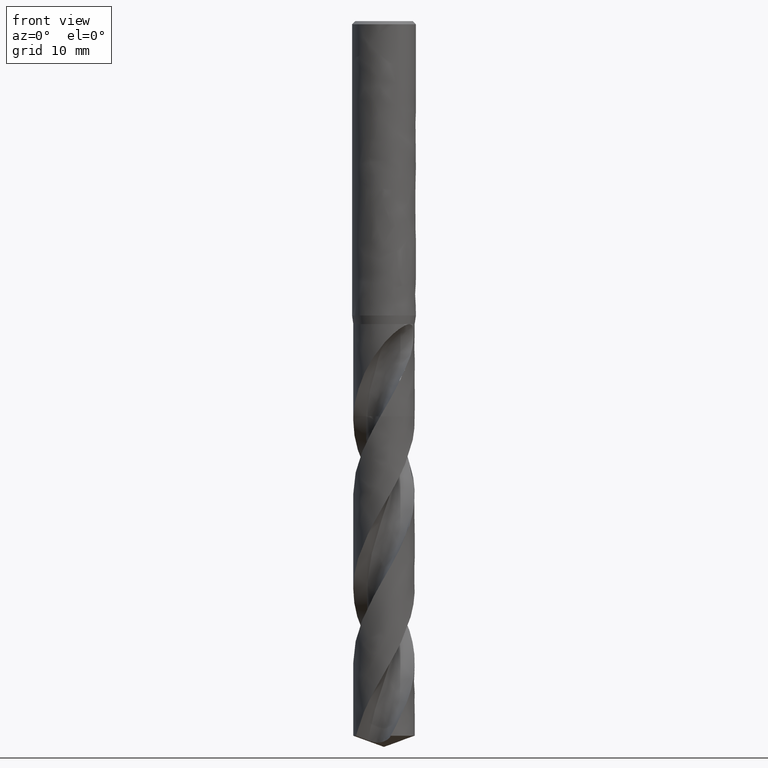
[diagram: clean part render]
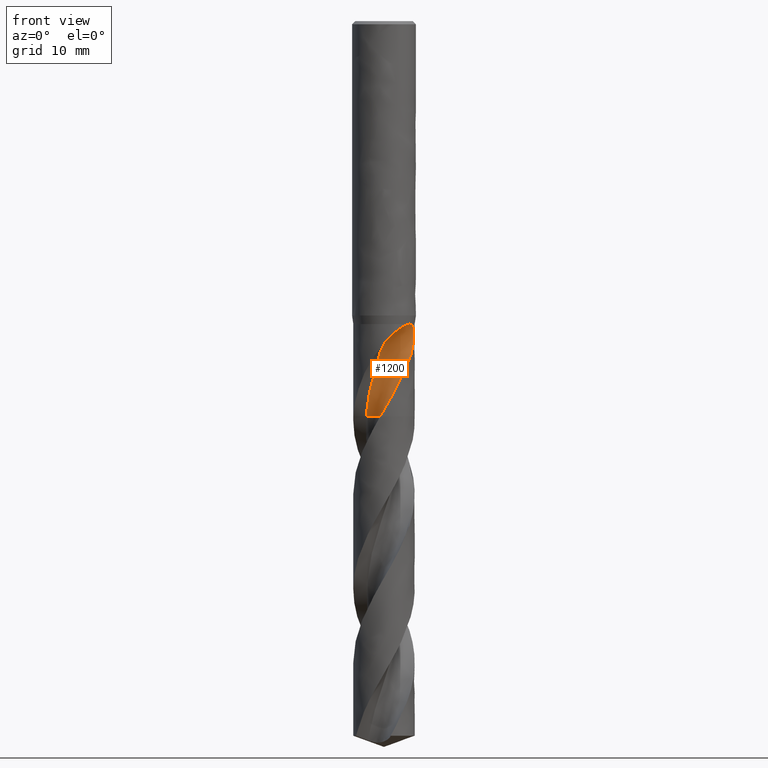
[diagram: same view with one face highlighted and labeled with its STEP entity id]
A machine part, front view. The second image highlights one B-rep face of the part: STEP entity #1200.
In plain terms, the highlighted face is a freeform B-spline surface patch.
Its self-contained STEP definition (entity closure, byte-faithful):
#72 = EDGE_CURVE('', #73, #75, #77, .T.);
#73 = VERTEX_POINT('', #74);
#74 = CARTESIAN_POINT('', (3.20133030510488, -2.14366094457479, -37.98));
#75 = VERTEX_POINT('', #76);
#76 = CARTESIAN_POINT('', (3.31943147922853, -1.95035244371541, -38.));
#77 = B_SPLINE_CURVE_WITH_KNOTS('', 3, (#78, #79, #80, #81, #82, #83, #84, #85, #86, #87), .UNSPECIFIED., .F., .U., (4, 3, 3, 4), (0., 0.131371551464803, 0.218819326132517, 0.227701219259508), .UNSPECIFIED.);
#78 = CARTESIAN_POINT('', (3.20133030510561, -2.14366094457371, -37.98));
#79 = CARTESIAN_POINT('', (3.22568942436468, -2.10727083285238, -37.9800497044159));
#80 = CARTESIAN_POINT('', (3.24923442093067, -2.07024870750386, -37.9821046946361));
#81 = CARTESIAN_POINT('', (3.27171381009526, -2.03292425608257, -37.9864832539406));
#82 = CARTESIAN_POINT('', (3.28667726707216, -2.00807914935214, -37.9893978519884));
#83 = CARTESIAN_POINT('', (3.30119565578071, -1.98305658088408, -37.993347348692));
#84 = CARTESIAN_POINT('', (3.31518494596397, -1.957991631135, -37.998419558188));
#85 = CARTESIAN_POINT('', (3.31660580979729, -1.95544583502126, -37.99893473222));
#86 = CARTESIAN_POINT('', (3.31802135133284, -1.95289938555896, -37.9994615181226));
#87 = CARTESIAN_POINT('', (3.31943147922852, -1.95035244371543, -38.));
#162 = VERTEX_POINT('', #163);
#163 = CARTESIAN_POINT('', (3.05170390260103, -2.34725441545003, -38.));
#170 = EDGE_CURVE('', #171, #162, #173, .T.);
#171 = VERTEX_POINT('', #172);
#172 = CARTESIAN_POINT('', (3.19951254609133, -2.14637308851057, -37.98));
#173 = B_SPLINE_CURVE_WITH_KNOTS('', 3, (#174, #175, #176, #177, #178, #179, #180, #181, #182, #183), .UNSPECIFIED., .F., .U., (4, 3, 3, 4), (0., 0.131654081633134, 0.219233245114541, 0.250449611742274), .UNSPECIFIED.);
#174 = CARTESIAN_POINT('', (3.19951254608842, -2.14637308851491, -37.98));
#175 = CARTESIAN_POINT('', (3.17505871378327, -2.18281309355881, -37.9800497466822));
#176 = CARTESIAN_POINT('', (3.14972671582542, -2.21871388005412, -37.9821026221019));
#177 = CARTESIAN_POINT('', (3.12372378910746, -2.25386517690207, -37.9858576838521));
#178 = CARTESIAN_POINT('', (3.10642607572268, -2.27724858541507, -37.9883556327407));
#179 = CARTESIAN_POINT('', (3.08881067511867, -2.30032997303066, -37.9916097650414));
#180 = CARTESIAN_POINT('', (3.07092863860264, -2.32306790995569, -37.9955408495115));
#181 = CARTESIAN_POINT('', (3.06455483705277, -2.33117252921893, -37.9969420295318));
#182 = CARTESIAN_POINT('', (3.05814589258237, -2.3392351962433, -37.9984295244529));
#183 = CARTESIAN_POINT('', (3.05170390260106, -2.34725441545002, -38.));
#185 = EDGE_CURVE('', #73, #171, #186, .T.);
#186 = LINE('', #187, #188);
#187 = CARTESIAN_POINT('', (3.20133030510488, -2.14366094457479, -37.98));
#188 = VECTOR('', #189, 0.00326496134123482);
#189 = DIRECTION('', (-0.00181775901355685, -0.00271214393578045, 0.));
#1145 = VERTEX_POINT('', #1146);
#1146 = CARTESIAN_POINT('', (2.59202014465686, -2.8467405167477, -43.7400773660523));
#1147 = VERTEX_POINT('', #1148);
#1148 = CARTESIAN_POINT('', (1.75145121548249, -3.42854468248336, -45.5343572750327));
#1179 = EDGE_CURVE('', #1147, #1145, #1180, .T.);
#1180 = B_SPLINE_CURVE_WITH_KNOTS('', 3, (#1181, #1182, #1183, #1184, #1185, #1186), .UNSPECIFIED., .F., .U., (4, 1, 1, 4), (45.5156427249674, 45.994, 46.7016, 47.3099226339477), .UNSPECIFIED.);
#1181 = CARTESIAN_POINT('', (1.75145121548253, -3.42854468248334, -45.5343572750326));
#1182 = CARTESIAN_POINT('', (1.82675896631787, -3.37552195424532, -45.3749048500217));
#1183 = CARTESIAN_POINT('', (2.0058530001326, -3.23416048038326, -44.9795857583442));
#1184 = CARTESIAN_POINT('', (2.24731809579754, -2.99782794068557, -44.3814924553508));
#1185 = CARTESIAN_POINT('', (2.47480460346424, -2.88978234782683, -43.9428515773682));
#1186 = CARTESIAN_POINT('', (2.59202014465686, -2.8467405167477, -43.7400773660523));
#1200 = ADVANCED_FACE('', (#1201), #1513, .T.);
#1201 = FACE_OUTER_BOUND('', #1202, .T.);
#1202 = EDGE_LOOP('', (#1203, #1286, #1332, #1333, #1436, #1437, #1438, #1439, #1493));
#1203 = ORIENTED_EDGE('', *, *, #1204, .T.);
#1204 = EDGE_CURVE('', #1205, #1207, #1209, .T.);
#1205 = VERTEX_POINT('', #1206);
#1206 = CARTESIAN_POINT('', (-2.24983323965265, -0.501191650524549, -49.55));
#1207 = VERTEX_POINT('', #1208);
#1208 = CARTESIAN_POINT('', (-0.466234069556905, -3.82166531663676, -49.55));
#1209 = B_SPLINE_CURVE_WITH_KNOTS('', 3, (#1210, #1211, #1212, #1213, #1214, #1215, #1216, #1217, #1218, #1219, #1220, #1221, #1222, #1223, #1224, #1225, #1226, #1227, #1228, #1229, #1230, #1231, #1232, #1233, #1234, #1235, #1236, #1237, #1238, #1239, #1240, #1241, #1242, #1243, #1244, #1245, #1246, #1247, #1248, #1249, #1250, #1251, #1252, #1253, #1254, #1255, #1256, #1257, #1258, #1259, #1260, #1261, #1262, #1263, #1264, #1265, #1266, #1267, #1268, #1269, #1270, #1271, #1272, #1273, #1274, #1275, #1276, #1277, #1278, #1279, #1280, #1281, #1282, #1283, #1284, #1285), .UNSPECIFIED., .F., .U., (4, 3, 3, 3, 3, 3, 3, 3, 3, 3, 3, 3, 3, 3, 3, 3, 3, 3, 3, 3, 3, 3, 3, 3, 3, 4), (0., 0.198088901692682, 0.395985560654532, 0.593694146046952, 0.791218018763926, 0.98855978655312, 1.18572134605706, 1.38270391323414, 1.57950804319666, 1.77613364014213, 1.97257995773266, 2.1688455899766, 2.20773125110463, 2.23367780451171, 2.43175021814858, 2.62963077565861, 2.82732357515355, 3.02483191170542, 3.22215833128962, 3.41930467179037, 3.6162720924893, 3.81306109304162, 4.00967152258799, 4.20610257933023, 4.40235280060064, 4.40692685715543), .UNSPECIFIED.);
#1210 = CARTESIAN_POINT('', (-2.24983323965265, -0.501191650524546, -49.55));
#1211 = CARTESIAN_POINT('', (-2.18430847634853, -0.509341371169211, -49.55));
#1212 = CARTESIAN_POINT('', (-2.11907363092086, -0.520313098798377, -49.55));
#1213 = CARTESIAN_POINT('', (-2.05448796143209, -0.534046410465008, -49.55));
#1214 = CARTESIAN_POINT('', (-1.98996497150471, -0.547766394129336, -49.55));
#1215 = CARTESIAN_POINT('', (-1.92597162268462, -0.564267743701342, -49.55));
#1216 = CARTESIAN_POINT('', (-1.86285965315768, -0.58345975983695, -49.55));
#1217 = CARTESIAN_POINT('', (-1.79980766288176, -0.602633536599554, -49.55));
#1218 = CARTESIAN_POINT('', (-1.73752001809649, -0.624527938019704, -49.55));
#1219 = CARTESIAN_POINT('', (-1.67633843208241, -0.649022850264866, -49.55));
#1220 = CARTESIAN_POINT('', (-1.61521400602634, -0.673494877713362, -49.55));
#1221 = CARTESIAN_POINT('', (-1.55508194897609, -0.700607238986529, -49.55));
#1222 = CARTESIAN_POINT('', (-1.49627153326969, -0.730211471666402, -49.55));
#1223 = CARTESIAN_POINT('', (-1.43751533716904, -0.759788411054685, -49.55));
#1224 = CARTESIAN_POINT('', (-1.37997124469594, -0.791906532054699, -49.55));
#1225 = CARTESIAN_POINT('', (-1.32395377701272, -0.826390285303954, -49.55));
#1226 = CARTESIAN_POINT('', (-1.26798746328392, -0.860842548726641, -49.55));
#1227 = CARTESIAN_POINT('', (-1.21344315658319, -0.897718800897812, -49.55));
#1228 = CARTESIAN_POINT('', (-1.16061843852553, -0.936817853181276, -49.55));
#1229 = CARTESIAN_POINT('', (-1.10784167717517, -0.97588140954777, -49.55));
#1230 = CARTESIAN_POINT('', (-1.05668552956693, -1.01723466832961, -49.55));
#1231 = CARTESIAN_POINT('', (-1.00742858643886, -1.06065242424017, -49.55));
#1232 = CARTESIAN_POINT('', (-0.958216262851785, -1.10403085005397, -49.55));
#1233 = CARTESIAN_POINT('', (-0.910810484988028, -1.14954866510322, -49.55));
#1234 = CARTESIAN_POINT('', (-0.865468952610682, -1.19695843266853, -49.55));
#1235 = CARTESIAN_POINT('', (-0.820168552299895, -1.24432519194513, -49.55));
#1236 = CARTESIAN_POINT('', (-0.776846674212669, -1.29366617862071, -49.55));
#1237 = CARTESIAN_POINT('', (-0.735738391365588, -1.34471365881365, -49.55));
#1238 = CARTESIAN_POINT('', (-0.694667590242893, -1.39571459491741, -49.55));
#1239 = CARTESIAN_POINT('', (-0.655732158052379, -1.44851102901015, -49.55));
#1240 = CARTESIAN_POINT('', (-0.619142981524816, -1.50281699874972, -49.55));
#1241 = CARTESIAN_POINT('', (-0.582587458608697, -1.55707301951043, -49.55));
#1242 = CARTESIAN_POINT('', (-0.548307962009516, -1.61293361585318, -49.55));
#1243 = CARTESIAN_POINT('', (-0.516489819498009, -1.670096784516, -49.55));
#1244 = CARTESIAN_POINT('', (-0.510185763646356, -1.68142239246994, -49.55));
#1245 = CARTESIAN_POINT('', (-0.503976813203508, -1.69280146335573, -49.55));
#1246 = CARTESIAN_POINT('', (-0.497864287576947, -1.70423157911069, -49.55));
#1247 = CARTESIAN_POINT('', (-0.493785689759117, -1.71185835207229, -49.55));
#1248 = CARTESIAN_POINT('', (-0.489749860379127, -1.71950815113113, -49.55));
#1249 = CARTESIAN_POINT('', (-0.48575718128164, -1.72718025251157, -49.55));
#1250 = CARTESIAN_POINT('', (-0.455277619186843, -1.78574801734146, -49.55));
#1251 = CARTESIAN_POINT('', (-0.427285574106421, -1.845678628553, -49.55));
#1252 = CARTESIAN_POINT('', (-0.401935176798117, -1.90664209416127, -49.55));
#1253 = CARTESIAN_POINT('', (-0.376609334292534, -1.96754650957585, -49.55));
#1254 = CARTESIAN_POINT('', (-0.353873599529919, -2.02959339768309, -49.55));
#1255 = CARTESIAN_POINT('', (-0.333852918723664, -2.09244177439771, -49.55));
#1256 = CARTESIAN_POINT('', (-0.313851234444083, -2.15523051773242, -49.55));
#1257 = CARTESIAN_POINT('', (-0.296522856751163, -2.21893408288718, -49.55));
#1258 = CARTESIAN_POINT('', (-0.281962834872927, -2.28320304449756, -49.55));
#1259 = CARTESIAN_POINT('', (-0.267416398641177, -2.34741203810791, -49.55));
#1260 = CARTESIAN_POINT('', (-0.255606585737227, -2.41230260615898, -49.55));
#1261 = CARTESIAN_POINT('', (-0.24659805441557, -2.47751947537949, -49.55));
#1262 = CARTESIAN_POINT('', (-0.237597820489, -2.54267627597051, -49.55));
#1263 = CARTESIAN_POINT('', (-0.231377298266493, -2.60827752144057, -49.55));
#1264 = CARTESIAN_POINT('', (-0.227970482236331, -2.67396470800331, -49.55));
#1265 = CARTESIAN_POINT('', (-0.224566775249091, -2.73959194877483, -49.55));
#1266 = CARTESIAN_POINT('', (-0.223965440121689, -2.80542435813636, -49.55));
#1267 = CARTESIAN_POINT('', (-0.226169757099158, -2.87110282446438, -49.55));
#1268 = CARTESIAN_POINT('', (-0.228372073552775, -2.93672168442005, -49.55));
#1269 = CARTESIAN_POINT('', (-0.233378941684453, -3.0023060338971, -49.55));
#1270 = CARTESIAN_POINT('', (-0.241163098829903, -3.06749876261111, -49.55));
#1271 = CARTESIAN_POINT('', (-0.24894020480692, -3.13263243741572, -49.55));
#1272 = CARTESIAN_POINT('', (-0.259503657784587, -3.1974932596684, -49.55));
#1273 = CARTESIAN_POINT('', (-0.272796043213533, -3.26172869739976, -49.55));
#1274 = CARTESIAN_POINT('', (-0.286076366816711, -3.32590584637158, -49.55));
#1275 = CARTESIAN_POINT('', (-0.302104691171292, -3.38957486071454, -49.55));
#1276 = CARTESIAN_POINT('', (-0.320794056841422, -3.45239031308101, -49.55));
#1277 = CARTESIAN_POINT('', (-0.339466371717577, -3.51514845727792, -49.55));
#1278 = CARTESIAN_POINT('', (-0.360828587575885, -3.5771679385478, -49.55));
#1279 = CARTESIAN_POINT('', (-0.384765017787317, -3.63811289169905, -49.55));
#1280 = CARTESIAN_POINT('', (-0.408679411994243, -3.69900173860345, -49.55));
#1281 = CARTESIAN_POINT('', (-0.435206384070916, -3.75892780042542, -49.55));
#1282 = CARTESIAN_POINT('', (-0.46420254178254, -3.81756714528528, -49.55));
#1283 = CARTESIAN_POINT('', (-0.464878363009064, -3.81893386822698, -49.55));
#1284 = CARTESIAN_POINT('', (-0.465555539650846, -3.82029992665659, -49.55));
#1285 = CARTESIAN_POINT('', (-0.466234069693427, -3.82166531656892, -49.55));
#1286 = ORIENTED_EDGE('', *, *, #1287, .F.);
#1287 = EDGE_CURVE('', #1147, #1207, #1288, .T.);
#1288 = B_SPLINE_CURVE_WITH_KNOTS('', 3, (#1289, #1290, #1291, #1292, #1293, #1294, #1295, #1296, #1297, #1298, #1299, #1300, #1301, #1302, #1303, #1304, #1305, #1306, #1307, #1308, #1309, #1310, #1311, #1312, #1313, #1314, #1315, #1316, #1317, #1318, #1319, #1320, #1321, #1322, #1323, #1324, #1325, #1326, #1327, #1328, #1329, #1330, #1331), .UNSPECIFIED., .F., .U., (4, 3, 3, 3, 3, 3, 3, 3, 3, 3, 3, 3, 3, 3, 4), (0., 0.295463922500052, 0.738503562352333, 1.18150886169484, 1.62444973831842, 1.91981590858101, 2.21517813684661, 2.51054195681651, 2.70749055912464, 3.15027779174519, 3.5930237112398, 3.68057742389274, 3.76817690366044, 4.43461656332778, 4.62056826105619), .UNSPECIFIED.);
#1289 = CARTESIAN_POINT('', (1.7514512154825, -3.42854468248336, -45.5343572750327));
#1290 = CARTESIAN_POINT('', (1.70964129805426, -3.44990302471907, -45.6209345992986));
#1291 = CARTESIAN_POINT('', (1.66728820774564, -3.47057467843666, -45.7074236928924));
#1292 = CARTESIAN_POINT('', (1.6243922350689, -3.49053718883612, -45.7938025951899));
#1293 = CARTESIAN_POINT('', (1.56007095981807, -3.52047039808578, -45.9233252707197));
#1294 = CARTESIAN_POINT('', (1.49452412204234, -3.54880906243078, -46.0526240545101));
#1295 = CARTESIAN_POINT('', (1.42789097031278, -3.57541988819484, -46.1817024569832));
#1296 = CARTESIAN_POINT('', (1.36126298339511, -3.60202865132333, -46.3107708544415));
#1297 = CARTESIAN_POINT('', (1.29353651822991, -3.6269147384794, -46.4396440346203));
#1298 = CARTESIAN_POINT('', (1.22486240186975, -3.64996056094968, -46.5683247322685));
#1299 = CARTESIAN_POINT('', (1.1561982722373, -3.67300303205026, -46.6969867169116));
#1300 = CARTESIAN_POINT('', (1.08657328001353, -3.69421063303849, -46.8254817093968));
#1301 = CARTESIAN_POINT('', (1.01613072261203, -3.71348601109061, -46.9538013508107));
#1302 = CARTESIAN_POINT('', (0.969157527088098, -3.72633940732492, -47.0393687099192));
#1303 = CARTESIAN_POINT('', (0.921815187143791, -3.7383355598437, -47.1248673975828));
#1304 = CARTESIAN_POINT('', (0.874144662785156, -3.74944944072117, -47.2102926081269));
#1305 = CARTESIAN_POINT('', (0.82647477464381, -3.76056317327127, -47.2957166785745));
#1306 = CARTESIAN_POINT('', (0.778471698814351, -3.77079541222262, -47.381074738728));
#1307 = CARTESIAN_POINT('', (0.7302087878685, -3.78011840107154, -47.4663799460978));
#1308 = CARTESIAN_POINT('', (0.68194561683427, -3.78944144016195, -47.5516856131765));
#1309 = CARTESIAN_POINT('', (0.633418127891448, -3.79785574539249, -47.6369462852028));
#1310 = CARTESIAN_POINT('', (0.584727167528973, -3.8053375854914, -47.7221901824602));
#1311 = CARTESIAN_POINT('', (0.552260033980231, -3.81032647665052, -47.7790308152156));
#1312 = CARTESIAN_POINT('', (0.51971916650108, -3.8149011237028, -47.8358672432422));
#1313 = CARTESIAN_POINT('', (0.487141145277524, -3.81905662495042, -47.8927114660836));
#1314 = CARTESIAN_POINT('', (0.413898016396293, -3.82839917867267, -48.0205107793431));
#1315 = CARTESIAN_POINT('', (0.340455625585955, -3.83562578535716, -48.1483681136751));
#1316 = CARTESIAN_POINT('', (0.266909208880179, -3.84073684001064, -48.2762325161413));
#1317 = CARTESIAN_POINT('', (0.193369654233992, -3.84584741779028, -48.4040849885478));
#1318 = CARTESIAN_POINT('', (0.119708567586548, -3.84884443112236, -48.5319695555935));
#1319 = CARTESIAN_POINT('', (0.0460008988748133, -3.84972517425628, -48.6598243273772));
#1320 = CARTESIAN_POINT('', (0.0314250896746483, -3.84989934261757, -48.6851078126837));
#1321 = CARTESIAN_POINT('', (0.016847445790431, -3.84999073905987, -48.7103909460857));
#1322 = CARTESIAN_POINT('', (0.00226913304161166, -3.84999933130322, -48.7356735864002));
#1323 = CARTESIAN_POINT('', (-0.0123168002556959, -3.85000792803801, -48.7609694427562));
#1324 = CARTESIAN_POINT('', (-0.0269035205776726, -3.84993363401311, -48.7862650093307));
#1325 = CARTESIAN_POINT('', (-0.0414898502413459, -3.8497764340708, -48.8115601501281));
#1326 = CARTESIAN_POINT('', (-0.152459785252747, -3.84858048774411, -49.0040006197403));
#1327 = CARTESIAN_POINT('', (-0.26343649862849, -3.84257958854429, -49.1964670716406));
#1328 = CARTESIAN_POINT('', (-0.373892465710648, -3.83180172035099, -49.3889051344082));
#1329 = CARTESIAN_POINT('', (-0.404712172048974, -3.82879445201189, -49.4425996946886));
#1330 = CARTESIAN_POINT('', (-0.435498848531159, -3.82541494042386, -49.4963037219605));
#1331 = CARTESIAN_POINT('', (-0.466234069556905, -3.82166531663676, -49.55));
#1332 = ORIENTED_EDGE('', *, *, #1179, .T.);
#1333 = ORIENTED_EDGE('', *, *, #1334, .T.);
#1334 = EDGE_CURVE('', #1145, #75, #1335, .T.);
#1335 = B_SPLINE_CURVE_WITH_KNOTS('', 3, (#1336, #1337, #1338, #1339, #1340, #1341, #1342, #1343, #1344, #1345, #1346, #1347, #1348, #1349, #1350, #1351, #1352, #1353, #1354, #1355, #1356, #1357, #1358, #1359, #1360, #1361, #1362, #1363, #1364, #1365, #1366, #1367, #1368, #1369, #1370, #1371, #1372, #1373, #1374, #1375, #1376, #1377, #1378, #1379, #1380, #1381, #1382, #1383, #1384, #1385, #1386, #1387, #1388, #1389, #1390, #1391, #1392, #1393, #1394, #1395, #1396, #1397, #1398, #1399, #1400, #1401, #1402, #1403, #1404, #1405, #1406, #1407, #1408, #1409, #1410, #1411, #1412, #1413, #1414, #1415, #1416, #1417, #1418, #1419, #1420, #1421, #1422, #1423, #1424, #1425, #1426, #1427, #1428, #1429, #1430, #1431, #1432, #1433, #1434, #1435), .UNSPECIFIED., .F., .U., (4, 3, 3, 3, 3, 3, 3, 3, 3, 3, 3, 3, 3, 3, 3, 3, 3, 3, 3, 3, 3, 3, 3, 3, 3, 3, 3, 3, 3, 3, 3, 3, 3, 4), (0., 0.19704578747574, 0.492569967065367, 0.787954709282465, 1.08317278316681, 1.37821273601244, 1.67307678508571, 1.96776707153262, 2.26227645542168, 2.55661790373623, 2.85081172359323, 3.1448800843557, 3.43886825887718, 3.73282833144518, 4.02683283339566, 4.32099592498144, 4.51752517700619, 4.71419178661894, 4.91105598189497, 5.04243701251078, 5.23982383691136, 5.29826112779932, 5.3372136411197, 5.46907686079793, 5.60116262203627, 5.73350332939159, 5.8661172890446, 5.99899236577946, 6.13206893567395, 6.26523512122094, 6.39834743607101, 6.53127186872596, 6.66391969303472, 6.7933299219264), .UNSPECIFIED.);
#1336 = CARTESIAN_POINT('', (2.59202014465686, -2.8467405167477, -43.7400773660523));
#1337 = CARTESIAN_POINT('', (2.61862665339964, -2.82251470261588, -43.6851290317722));
#1338 = CARTESIAN_POINT('', (2.64508477282443, -2.79774096171256, -43.6303474708659));
#1339 = CARTESIAN_POINT('', (2.67132659047921, -2.77245635619402, -43.575701596841));
#1340 = CARTESIAN_POINT('', (2.71068339040231, -2.73453515829461, -43.4937451272508));
#1341 = CARTESIAN_POINT('', (2.74955883837683, -2.69545742119802, -43.4120834808595));
#1342 = CARTESIAN_POINT('', (2.78773970163064, -2.65537329879478, -43.3306014419161));
#1343 = CARTESIAN_POINT('', (2.82590254998205, -2.61530808930999, -43.249157848698));
#1344 = CARTESIAN_POINT('', (2.86337717477911, -2.57423120542, -43.1678806288207));
#1345 = CARTESIAN_POINT('', (2.89997027685457, -2.53232549119579, -43.0866430828369));
#1346 = CARTESIAN_POINT('', (2.93654273158289, -2.49044342191502, -43.0054513744485));
#1347 = CARTESIAN_POINT('', (2.97224035487515, -2.44772666201704, -42.9242872021744));
#1348 = CARTESIAN_POINT('', (3.0068914520692, -2.40439260427102, -42.8430147801259));
#1349 = CARTESIAN_POINT('', (3.04152164238128, -2.36108469230691, -42.7617913941275));
#1350 = CARTESIAN_POINT('', (3.07511030348349, -2.31715570826155, -42.6804454401354));
#1351 = CARTESIAN_POINT('', (3.10752016788487, -2.27284368274464, -42.5988482046622));
#1352 = CARTESIAN_POINT('', (3.13991070942048, -2.2285580762004, -42.5172996177242));
#1353 = CARTESIAN_POINT('', (3.17112953886957, -2.18388247737156, -42.4354866864363));
#1354 = CARTESIAN_POINT('', (3.20107656964341, -2.13906727226633, -42.3532960123987));
#1355 = CARTESIAN_POINT('', (3.23100595270897, -2.09427847664629, -42.2711537731141));
#1356 = CARTESIAN_POINT('', (3.25967200622616, -2.04933982832489, -42.1886206610701));
#1357 = CARTESIAN_POINT('', (3.28700182185241, -2.00452463769818, -42.1055915605969));
#1358 = CARTESIAN_POINT('', (3.31431486042906, -1.95973695792944, -42.0226134294883));
#1359 = CARTESIAN_POINT('', (3.34029787380085, -1.91506514070278, -41.9391205086548));
#1360 = CARTESIAN_POINT('', (3.36490489898792, -1.87080598159373, -41.8550197968621));
#1361 = CARTESIAN_POINT('', (3.38949789272087, -1.82657206000756, -41.7709670411011));
#1362 = CARTESIAN_POINT('', (3.41272306787415, -1.78273866851127, -41.6862860600792));
#1363 = CARTESIAN_POINT('', (3.43456149261913, -1.73962276181296, -41.6009020879012));
#1364 = CARTESIAN_POINT('', (3.45638896419058, -1.69652848011798, -41.5155609404907));
#1365 = CARTESIAN_POINT('', (3.47683834612743, -1.65413655705432, -41.4294916525584));
#1366 = CARTESIAN_POINT('', (3.4959096534769, -1.61279747480184, -41.3426352619712));
#1367 = CARTESIAN_POINT('', (3.51497282785826, -1.57147602162066, -41.255815911333));
#1368 = CARTESIAN_POINT('', (3.5326665064908, -1.53119080743407, -41.1681767297183));
#1369 = CARTESIAN_POINT('', (3.54901055522347, -1.49232170757929, -41.0796864370121));
#1370 = CARTESIAN_POINT('', (3.56535014727871, -1.4534632065084, -40.9912202737427));
#1371 = CARTESIAN_POINT('', (3.58034932132965, -1.41600020839881, -40.9018609976353));
#1372 = CARTESIAN_POINT('', (3.59403881847003, -1.38035682753791, -40.8116092691951));
#1373 = CARTESIAN_POINT('', (3.6077270070489, -1.34471685378218, -40.721366167802));
#1374 = CARTESIAN_POINT('', (3.62011436274309, -1.31087412086321, -40.6301737713541));
#1375 = CARTESIAN_POINT('', (3.63122981489615, -1.27932405254075, -40.5380736546485));
#1376 = CARTESIAN_POINT('', (3.64234694704836, -1.24776921571337, -40.4459596178506));
#1377 = CARTESIAN_POINT('', (3.65220215772726, -1.2184796932911, -40.3528613516523));
#1378 = CARTESIAN_POINT('', (3.66081250918961, -1.19203681678077, -40.2588883222277));
#1379 = CARTESIAN_POINT('', (3.66942750518118, -1.16557967665845, -40.1648646025982));
#1380 = CARTESIAN_POINT('', (3.67680772265818, -1.14193984840273, -40.0698579380764));
#1381 = CARTESIAN_POINT('', (3.68293131581572, -1.12183640651564, -39.9740820982028));
#1382 = CARTESIAN_POINT('', (3.68702246530856, -1.10840537281289, -39.9100946208108));
#1383 = CARTESIAN_POINT('', (3.6905556002298, -1.09654399486761, -39.8457127844005));
#1384 = CARTESIAN_POINT('', (3.69350697686541, -1.08651102702483, -39.7810431905738));
#1385 = CARTESIAN_POINT('', (3.69646041626761, -1.07647104697267, -39.7163283980841));
#1386 = CARTESIAN_POINT('', (3.69883450800033, -1.06825251003715, -39.6512665924099));
#1387 = CARTESIAN_POINT('', (3.70058247793122, -1.06216256949132, -39.5860179480102));
#1388 = CARTESIAN_POINT('', (3.70233220400058, -1.0560665105457, -39.520703750049));
#1389 = CARTESIAN_POINT('', (3.70345741873032, -1.05209576753279, -39.4551235336917));
#1390 = CARTESIAN_POINT('', (3.7038763182408, -1.05061896954843, -39.3895200923017));
#1391 = CARTESIAN_POINT('', (3.70415587872326, -1.04963340058336, -39.3457383993957));
#1392 = CARTESIAN_POINT('', (3.70412043360548, -1.04975893231826, -39.3019109017326));
#1393 = CARTESIAN_POINT('', (3.70373407335014, -1.05112031371636, -39.258140095247));
#1394 = CARTESIAN_POINT('', (3.70315360580839, -1.05316565275587, -39.1923788475755));
#1395 = CARTESIAN_POINT('', (3.70178306958501, -1.05800433071375, -39.1266228617022));
#1396 = CARTESIAN_POINT('', (3.69944882864093, -1.06610429333498, -39.0613694788442));
#1397 = CARTESIAN_POINT('', (3.69875776571175, -1.06850232508464, -39.0420509102058));
#1398 = CARTESIAN_POINT('', (3.69798151530137, -1.07118736601667, -39.0227684085397));
#1399 = CARTESIAN_POINT('', (3.69711432236092, -1.07417209393737, -39.0035388845174));
#1400 = CARTESIAN_POINT('', (3.69653627803252, -1.07616162241007, -38.9907210711102));
#1401 = CARTESIAN_POINT('', (3.69591773229208, -1.07828459197879, -38.977924963725));
#1402 = CARTESIAN_POINT('', (3.6952568266452, -1.08054476313201, -38.9651561137605));
#1403 = CARTESIAN_POINT('', (3.69301950897113, -1.08819596249974, -38.9219306188085));
#1404 = CARTESIAN_POINT('', (3.69029541125361, -1.09742911929184, -38.8789694370184));
#1405 = CARTESIAN_POINT('', (3.68700166342862, -1.10838564312003, -38.8365301195538));
#1406 = CARTESIAN_POINT('', (3.68370235684523, -1.11936065794148, -38.7940191785392));
#1407 = CARTESIAN_POINT('', (3.67982499834233, -1.13208735391804, -38.7519522271285));
#1408 = CARTESIAN_POINT('', (3.67527091627535, -1.14668378029018, -38.7106639581663));
#1409 = CARTESIAN_POINT('', (3.67070804411979, -1.16130838004142, -38.6692959964063));
#1410 = CARTESIAN_POINT('', (3.66545419271504, -1.17784762517845, -38.6286122288672));
#1411 = CARTESIAN_POINT('', (3.65940093273617, -1.19636316120552, -38.5890326893344));
#1412 = CARTESIAN_POINT('', (3.65333517420542, -1.21491692744053, -38.5493714274024));
#1413 = CARTESIAN_POINT('', (3.64644718667062, -1.23551395059527, -38.5107035092511));
#1414 = CARTESIAN_POINT('', (3.63863299634569, -1.25811363473432, -38.4735249660779));
#1415 = CARTESIAN_POINT('', (3.6308034198685, -1.28075781768472, -38.4362732182986));
#1416 = CARTESIAN_POINT('', (3.62201368636668, -1.30549735838627, -38.4003869821731));
#1417 = CARTESIAN_POINT('', (3.61218735998525, -1.33214206313094, -38.3663979100934));
#1418 = CARTESIAN_POINT('', (3.60234613285947, -1.35882717218528, -38.3323572966284));
#1419 = CARTESIAN_POINT('', (3.59142219757933, -1.38753503980923, -38.3000837985726));
#1420 = CARTESIAN_POINT('', (3.57939276791364, -1.41790246949765, -38.2700701317241));
#1421 = CARTESIAN_POINT('', (3.56735523745914, -1.44829034904458, -38.2400362532461));
#1422 = CARTESIAN_POINT('', (3.55415563914667, -1.48047385313722, -38.2121348104255));
#1423 = CARTESIAN_POINT('', (3.5398410332434, -1.51394367773914, -38.186733587656));
#1424 = CARTESIAN_POINT('', (3.52553221813298, -1.54739996254662, -38.16134264063));
#1425 = CARTESIAN_POINT('', (3.51004543068641, -1.58228704882783, -38.1383363668944));
#1426 = CARTESIAN_POINT('', (3.49349296042231, -1.61802562880807, -38.1179026936316));
#1427 = CARTESIAN_POINT('', (3.47696385324412, -1.6537137653499, -38.0974978616025));
#1428 = CARTESIAN_POINT('', (3.45930445936318, -1.69039565212337, -38.0795699196279));
#1429 = CARTESIAN_POINT('', (3.44066944015543, -1.72751086930894, -38.0641294417704));
#1430 = CARTESIAN_POINT('', (3.42207319938548, -1.76454885179327, -38.0487210946881));
#1431 = CARTESIAN_POINT('', (3.40243913051575, -1.80215110568146, -38.035728827673));
#1432 = CARTESIAN_POINT('', (3.38193677266041, -1.83983794550696, -38.0250328048873));
#1433 = CARTESIAN_POINT('', (3.36193482512223, -1.87660494559487, -38.0145978447653));
#1434 = CARTESIAN_POINT('', (3.34104861080471, -1.91356084367624, -38.006313191151));
#1435 = CARTESIAN_POINT('', (3.31943147922853, -1.95035244371541, -38.));
#1436 = ORIENTED_EDGE('', *, *, #72, .F.);
#1437 = ORIENTED_EDGE('', *, *, #185, .T.);
#1438 = ORIENTED_EDGE('', *, *, #170, .T.);
#1439 = ORIENTED_EDGE('', *, *, #1440, .F.);
#1440 = EDGE_CURVE('', #1441, #162, #1443, .T.);
#1441 = VERTEX_POINT('', #1442);
#1442 = CARTESIAN_POINT('', (0.0989361478359106, -3.84872857430235, -40.270245957036));
#1443 = B_SPLINE_CURVE_WITH_KNOTS('', 3, (#1444, #1445, #1446, #1447, #1448, #1449, #1450, #1451, #1452, #1453, #1454, #1455, #1456, #1457, #1458, #1459, #1460, #1461, #1462, #1463, #1464, #1465, #1466, #1467, #1468, #1469, #1470, #1471, #1472, #1473, #1474, #1475, #1476, #1477, #1478, #1479, #1480, #1481, #1482, #1483, #1484, #1485, #1486, #1487, #1488, #1489, #1490, #1491, #1492), .UNSPECIFIED., .F., .U., (4, 3, 3, 3, 3, 3, 3, 3, 3, 3, 3, 3, 3, 3, 3, 3, 4), (0., 0.298606149347726, 0.597387814369481, 0.896321949650537, 1.19538952980366, 1.49456674218471, 1.79382300294475, 2.09313678725189, 2.39248211202749, 2.69182566559965, 2.99112227914787, 3.18974957923227, 3.38831639880666, 3.58679603986545, 3.78515247379415, 3.98333678612327, 4.18853169294191), .UNSPECIFIED.);
#1444 = CARTESIAN_POINT('', (0.0989361478359104, -3.84872857430235, -40.270245957036));
#1445 = CARTESIAN_POINT('', (0.163112189906138, -3.847078852774, -40.1941801530561));
#1446 = CARTESIAN_POINT('', (0.228545582341636, -3.84378967797617, -40.1191724268566));
#1447 = CARTESIAN_POINT('', (0.295073916834951, -3.83867573306273, -40.0453136374744));
#1448 = CARTESIAN_POINT('', (0.36164135556472, -3.83355878225845, -39.9714114351376));
#1449 = CARTESIAN_POINT('', (0.429342239966789, -3.82661176912149, -39.8986140675563));
#1450 = CARTESIAN_POINT('', (0.497987780358601, -3.81765741923168, -39.827014123442));
#1451 = CARTESIAN_POINT('', (0.566668351023581, -3.80869849987792, -39.7553776414028));
#1452 = CARTESIAN_POINT('', (0.636338673809183, -3.79772435070868, -39.684893604172));
#1453 = CARTESIAN_POINT('', (0.706794445923334, -3.78456623818549, -39.6156699316861));
#1454 = CARTESIAN_POINT('', (0.77728166965303, -3.7714022518512, -39.5464153575968));
#1455 = CARTESIAN_POINT('', (0.848604740066531, -3.75604297265655, -39.478373272264));
#1456 = CARTESIAN_POINT('', (0.920542373634484, -3.73832873599226, -39.4116715633378));
#1457 = CARTESIAN_POINT('', (0.992506378108422, -3.72060800564106, -39.3449454028915));
#1458 = CARTESIAN_POINT('', (1.06514184561409, -3.70051636564627, -39.2795091673494));
#1459 = CARTESIAN_POINT('', (1.13819907335953, -3.67790740359333, -39.2155037064804));
#1460 = CARTESIAN_POINT('', (1.21127560423097, -3.65529246781737, -39.1514813341365));
#1461 = CARTESIAN_POINT('', (1.28483732388049, -3.63013923758551, -39.0888347231028));
#1462 = CARTESIAN_POINT('', (1.35861759281997, -3.60231290096794, -39.0277393407031));
#1463 = CARTESIAN_POINT('', (1.43241204392815, -3.57448121552464, -38.9666322144452));
#1464 = CARTESIAN_POINT('', (1.5064967856206, -3.5439482209337, -38.9070171642266));
#1465 = CARTESIAN_POINT('', (1.58058392257591, -3.51059175406292, -38.8491142552829));
#1466 = CARTESIAN_POINT('', (1.65467886653219, -3.47723177222341, -38.7912052447664));
#1467 = CARTESIAN_POINT('', (1.72885798751165, -3.44101063905687, -38.734944152641));
#1468 = CARTESIAN_POINT('', (1.80280638817069, -3.40182144251736, -38.6806096008182));
#1469 = CARTESIAN_POINT('', (1.87675435128269, -3.36263247785734, -38.6262753704888));
#1470 = CARTESIAN_POINT('', (1.9505658719967, -3.32042506116305, -38.5737973266432));
#1471 = CARTESIAN_POINT('', (2.02389125318106, -3.27511285229947, -38.5235332541152));
#1472 = CARTESIAN_POINT('', (2.09720513622187, -3.22980774883751, -38.47327706349));
#1473 = CARTESIAN_POINT('', (2.17014318370069, -3.18132991460513, -38.4251569673258));
#1474 = CARTESIAN_POINT('', (2.2423095595509, -3.12962423289868, -38.379641044636));
#1475 = CARTESIAN_POINT('', (2.29020255847951, -3.09530991228335, -38.349434539031));
#1476 = CARTESIAN_POINT('', (2.33780133389932, -3.05954180680175, -38.3203474341308));
#1477 = CARTESIAN_POINT('', (2.38497520841296, -3.0223158761545, -38.2925535395251));
#1478 = CARTESIAN_POINT('', (2.43213471883874, -2.98510128052147, -38.26476810795));
#1479 = CARTESIAN_POINT('', (2.47891276084791, -2.94639534636619, -38.2382492148633));
#1480 = CARTESIAN_POINT('', (2.52516300460121, -2.90620918039176, -38.2132099901034));
#1481 = CARTESIAN_POINT('', (2.57139294270826, -2.86604065769885, -38.1881817585318));
#1482 = CARTESIAN_POINT('', (2.6171452442312, -2.82434947199356, -38.164604411804));
#1483 = CARTESIAN_POINT('', (2.66225317413831, -2.781170263898, -38.1427421059775));
#1484 = CARTESIAN_POINT('', (2.70733310309501, -2.73801785949011, -38.1208933712757));
#1485 = CARTESIAN_POINT('', (2.75182759663545, -2.69332269571491, -38.1007286723621));
#1486 = CARTESIAN_POINT('', (2.79554268705743, -2.64715717040748, -38.0825784009736));
#1487 = CARTESIAN_POINT('', (2.83921984419365, -2.60103170472354, -38.0644438792821));
#1488 = CARTESIAN_POINT('', (2.88218824124246, -2.55336362790486, -38.0482908161128));
#1489 = CARTESIAN_POINT('', (2.92421686327612, -2.5042874708251, -38.0345343902225));
#1490 = CARTESIAN_POINT('', (2.96773221058368, -2.45347528816215, -38.0202913429523));
#1491 = CARTESIAN_POINT('', (3.01033295323699, -2.40104146418136, -38.0085863665949));
#1492 = CARTESIAN_POINT('', (3.05170390260106, -2.34725441545003, -38.));
#1493 = ORIENTED_EDGE('', *, *, #1494, .F.);
#1494 = EDGE_CURVE('', #1205, #1441, #1495, .T.);
#1495 = B_SPLINE_CURVE_WITH_KNOTS('', 3, (#1496, #1497, #1498, #1499, #1500, #1501, #1502, #1503, #1504, #1505, #1506, #1507, #1508, #1509, #1510, #1511, #1512), .UNSPECIFIED., .F., .U., (4, 1, 1, 1, 1, 1, 1, 1, 1, 1, 1, 1, 1, 1, 4), (41.5, 41.7484, 42.456, 43.1636, 43.8712, 44.5788, 45.2864, 45.994, 46.7016, 47.4092, 48.1168, 48.8244, 49.532, 50.2396, 50.779754042964), .UNSPECIFIED.);
#1496 = CARTESIAN_POINT('', (-2.24983323965265, -0.501191650524549, -49.55));
#1497 = CARTESIAN_POINT('', (-2.24438710611715, -0.528999429016462, -49.4672));
#1498 = CARTESIAN_POINT('', (-2.22146711640602, -0.635694317300445, -49.1485333333333));
#1499 = CARTESIAN_POINT('', (-2.16855396624721, -0.818717279525992, -48.594));
#1500 = CARTESIAN_POINT('', (-2.07627877736748, -1.04416868806, -47.8864));
#1501 = CARTESIAN_POINT('', (-1.96284362659476, -1.2610837728739, -47.1788));
#1502 = CARTESIAN_POINT('', (-1.81520713122226, -1.45695852999682, -46.4712));
#1503 = CARTESIAN_POINT('', (-1.63790409429649, -1.62542908921461, -45.7636));
#1504 = CARTESIAN_POINT('', (-1.43358027729613, -1.75920042010113, -45.056));
#1505 = CARTESIAN_POINT('', (-1.21982083264237, -1.86330554837705, -44.3484));
#1506 = CARTESIAN_POINT('', (-1.0520155823819, -2.03903705414069, -43.6408));
#1507 = CARTESIAN_POINT('', (-0.890473323079106, -2.27987955658426, -42.9332));
#1508 = CARTESIAN_POINT('', (-0.713862982479652, -2.59653290109131, -42.2256));
#1509 = CARTESIAN_POINT('', (-0.494154995622357, -2.9880145328324, -41.518));
#1510 = CARTESIAN_POINT('', (-0.227453138904188, -3.4127584704301, -40.866215319012));
#1511 = CARTESIAN_POINT('', (-0.00744114389162105, -3.71395549733184, -40.4502973046907));
#1512 = CARTESIAN_POINT('', (0.0989361478359112, -3.84872857430235, -40.270245957036));
#1513 = (
   BOUNDED_SURFACE ()
   B_SPLINE_SURFACE (3, 2, ((#1514, #1515, #1516, #1517, #1518), (#1519, #1520, #1521, #1522, #1523), (#1524, #1525, #1526, #1527, #1528), (#1529, #1530, #1531, #1532, #1533), (#1534, #1535, #1536, #1537, #1538), (#1539, #1540, #1541, #1542, #1543), (#1544, #1545, #1546, #1547, #1548), (#1549, #1550, #1551, #1552, #1553), (#1554, #1555, #1556, #1557, #1558), (#1559, #1560, #1561, #1562, #1563), (#1564, #1565, #1566, #1567, #1568), (#1569, #1570, #1571, #1572, #1573), (#1574, #1575, #1576, #1577, #1578), (#1579, #1580, #1581, #1582, #1583), (#1584, #1585, #1586, #1587, #1588), (#1589, #1590, #1591, #1592, #1593), (#1594, #1595, #1596, #1597, #1598), (#1599, #1600, #1601, #1602, #1603), (#1604, #1605, #1606, #1607, #1608)), .UNSPECIFIED., .F., .F., .U.)
   B_SPLINE_SURFACE_WITH_KNOTS ((4, 1, 1, 1, 1, 1, 1, 1, 1, 1, 1, 1, 1, 1, 1, 1, 4), (3, 2, 3), (41.5, 41.7484, 42.456, 43.1636, 43.8712, 44.5788, 45.2864, 45.994, 46.7016, 47.4092, 48.1168, 48.8244, 49.532, 50.2396, 50.9472, 51.6548, 53.07), (0., 0.5, 1.), .UNSPECIFIED.)
   GEOMETRIC_REPRESENTATION_ITEM ()
   RATIONAL_B_SPLINE_SURFACE (((1., 0.887010833178222, 1., 0.887010833178222, 1.), (1., 0.887010833178222, 1., 0.887010833178222, 1.), (1., 0.887010833178222, 1., 0.887010833178222, 1.), (1., 0.887010833178221, 1., 0.887010833178221, 1.), (1., 0.887010833178222, 1., 0.887010833178222, 1.), (1., 0.887010833178221, 1., 0.887010833178221, 1.), (1., 0.887010833178222, 1., 0.887010833178222, 1.), (1., 0.887010833178222, 1., 0.887010833178222, 1.), (1., 0.887010833178221, 1., 0.887010833178221, 1.), (1., 0.887010833178222, 1., 0.887010833178222, 1.), (1., 0.887010833178221, 1., 0.887010833178221, 1.), (1., 0.887010833178222, 1., 0.887010833178222, 1.), (1., 0.887010833178221, 1., 0.887010833178221, 1.), (1., 0.887010833178221, 1., 0.887010833178221, 1.), (1., 0.887010833178222, 1., 0.887010833178222, 1.), (1., 0.887010833178222, 1., 0.887010833178222, 1.), (1., 0.887010833178221, 1., 0.887010833178221, 1.), (1., 0.887010833178222, 1., 0.887010833178222, 1.), (1., 0.887010833178222, 1., 0.887010833178222, 1.)))
   REPRESENTATION_ITEM ('')
   SURFACE ()
);
#1514 = CARTESIAN_POINT('', (-0.478300778455272, -3.84559749504657, -49.55));
#1515 = CARTESIAN_POINT('', (0.0693267687946783, -2.77497049997666, -49.55));
#1516 = CARTESIAN_POINT('', (-0.493573265888533, -1.71229385864446, -49.55));
#1517 = CARTESIAN_POINT('', (-1.05647330057174, -0.649617217312271, -49.55));
#1518 = CARTESIAN_POINT('', (-2.24983323965265, -0.501191650524549, -49.55));
#1519 = CARTESIAN_POINT('', (-0.431192638333579, -3.85269448820914, -49.4672));
#1520 = CARTESIAN_POINT('', (0.103451228407955, -2.77499815131792, -49.4672));
#1521 = CARTESIAN_POINT('', (-0.472686805276692, -1.71890231052738, -49.4672));
#1522 = CARTESIAN_POINT('', (-1.04882483896134, -0.662806469736843, -49.4672));
#1523 = CARTESIAN_POINT('', (-2.24438710611715, -0.528999429016462, -49.4672));
#1524 = CARTESIAN_POINT('', (-0.249300609524644, -3.87672025077996, -49.1485333333333));
#1525 = CARTESIAN_POINT('', (0.234852796340018, -2.77271276484759, -49.1485333333333));
#1526 = CARTESIAN_POINT('', (-0.391798207488757, -1.74288483319811, -49.1485333333333));
#1527 = CARTESIAN_POINT('', (-1.01844921131753, -0.713056901548632, -49.1485333333333));
#1528 = CARTESIAN_POINT('', (-2.22146711640602, -0.635694317300445, -49.1485333333333));
#1529 = CARTESIAN_POINT('', (0.0704007978298384, -3.89640572028425, -48.594));
#1530 = CARTESIAN_POINT('', (0.46341732204439, -2.75272631044901, -48.594));
#1531 = CARTESIAN_POINT('', (-0.248004987147319, -1.77479846097794, -48.594));
#1532 = CARTESIAN_POINT('', (-0.959427296339029, -0.796870611506866, -48.594));
#1533 = CARTESIAN_POINT('', (-2.16855396624721, -0.818717279525991, -48.594));
#1534 = CARTESIAN_POINT('', (0.479533058082427, -3.87775279193975, -47.8864));
#1535 = CARTESIAN_POINT('', (0.751265255845814, -2.6960893289132, -47.8864));
#1536 = CARTESIAN_POINT('', (-0.0608375999190324, -1.79572502552717, -47.8864));
#1537 = CARTESIAN_POINT('', (-0.872940455683879, -0.895360722141148, -47.8864));
#1538 = CARTESIAN_POINT('', (-2.07627877736748, -1.04416868806, -47.8864));
#1539 = CARTESIAN_POINT('', (0.887111367009585, -3.82077059872297, -47.1788));
#1540 = CARTESIAN_POINT('', (1.03394429373191, -2.61246497751465, -47.1788));
#1541 = CARTESIAN_POINT('', (0.128378180841617, -1.79913085318552, -47.1788));
#1542 = CARTESIAN_POINT('', (-0.777187932048675, -0.985796728856381, -47.1788));
#1543 = CARTESIAN_POINT('', (-1.96284362659477, -1.2610837728739, -47.1788));
#1544 = CARTESIAN_POINT('', (1.28071001541049, -3.69774142177971, -46.4712));
#1545 = CARTESIAN_POINT('', (1.29971028798279, -2.48353693922533, -46.4712));
#1546 = CARTESIAN_POINT('', (0.315990312545231, -1.77153374700067, -46.4712));
#1547 = CARTESIAN_POINT('', (-0.667729662892329, -1.05953055477601, -46.4712));
#1548 = CARTESIAN_POINT('', (-1.81520713122226, -1.45695852999682, -46.4712));
#1549 = CARTESIAN_POINT('', (1.64768920194694, -3.51224784675311, -45.7636));
#1550 = CARTESIAN_POINT('', (1.53998949194629, -2.31318463090453, -45.7636));
#1551 = CARTESIAN_POINT('', (0.496000391593988, -1.71365266221484, -45.7636));
#1552 = CARTESIAN_POINT('', (-0.547988708758318, -1.11412069352515, -45.7636));
#1553 = CARTESIAN_POINT('', (-1.63790409429649, -1.62542908921461, -45.7636));
#1554 = CARTESIAN_POINT('', (1.97500267614597, -3.26435505321864, -45.056));
#1555 = CARTESIAN_POINT('', (1.74554691153515, -2.10283889149403, -45.056));
#1556 = CARTESIAN_POINT('', (0.662478153418059, -1.62457974934273, -45.056));
#1557 = CARTESIAN_POINT('', (-0.420590604699033, -1.14632060719143, -45.056));
#1558 = CARTESIAN_POINT('', (-1.43358027729613, -1.75920042010113, -45.056));
#1559 = CARTESIAN_POINT('', (2.26067834052368, -2.98475167987687, -44.3484));
#1560 = CARTESIAN_POINT('', (1.91824266457128, -1.87444873945748, -44.3484));
#1561 = CARTESIAN_POINT('', (0.812322706454421, -1.51811201961554, -44.3484));
#1562 = CARTESIAN_POINT('', (-0.293597251662438, -1.16177529977359, -44.3484));
#1563 = CARTESIAN_POINT('', (-1.21982083264237, -1.86330554837705, -44.3484));
#1564 = CARTESIAN_POINT('', (2.63378489892674, -2.81840110969787, -43.6408));
#1565 = CARTESIAN_POINT('', (2.16489422042978, -1.71700692996874, -43.6408));
#1566 = CARTESIAN_POINT('', (0.993740282126143, -1.46936593918076, -43.6408));
#1567 = CARTESIAN_POINT('', (-0.177413656177488, -1.22172494839278, -43.6408));
#1568 = CARTESIAN_POINT('', (-1.0520155823819, -2.0390370541407, -43.6408));
#1569 = CARTESIAN_POINT('', (3.10644421571092, -2.69877515544634, -42.9332));
#1570 = CARTESIAN_POINT('', (2.4870276792454, -1.58209860374917, -42.9332));
#1571 = CARTESIAN_POINT('', (1.21701706951028, -1.44899556878206, -42.9332));
#1572 = CARTESIAN_POINT('', (-0.052993540224843, -1.31589253381496, -42.9332));
#1573 = CARTESIAN_POINT('', (-0.890473323079106, -2.27987955658425, -42.9332));
#1574 = CARTESIAN_POINT('', (3.7076566043279, -2.5981480916829, -42.2256));
#1575 = CARTESIAN_POINT('', (2.90224407315775, -1.44700501405087, -42.2256));
#1576 = CARTESIAN_POINT('', (1.4973172184253, -1.44649179125651, -42.2256));
#1577 = CARTESIAN_POINT('', (0.0923903636928441, -1.44597856846216, -42.2256));
#1578 = CARTESIAN_POINT('', (-0.713862982479653, -2.59653290109131, -42.2256));
#1579 = CARTESIAN_POINT('', (4.4517118315114, -2.47158393471548, -41.518));
#1580 = CARTESIAN_POINT('', (3.41589692787876, -1.27837704200009, -41.518));
#1581 = CARTESIAN_POINT('', (1.84436004130632, -1.44247158046257, -41.518));
#1582 = CARTESIAN_POINT('', (0.272823154733881, -1.60656611892505, -41.518));
#1583 = CARTESIAN_POINT('', (-0.494154995622358, -2.9880145328324, -41.518));
#1584 = CARTESIAN_POINT('', (5.34550098113645, -2.27381590348582, -40.8104));
#1585 = CARTESIAN_POINT('', (4.02806346238372, -1.0434164936354, -40.8104));
#1586 = CARTESIAN_POINT('', (2.26452815339142, -1.41687002155429, -40.8104));
#1587 = CARTESIAN_POINT('', (0.500992844399124, -1.79032354947318, -40.8104));
#1588 = CARTESIAN_POINT('', (-0.204614232670226, -3.44913124669648, -40.8104));
#1589 = CARTESIAN_POINT('', (6.38578139146811, -1.95672258624927, -40.1028));
#1590 = CARTESIAN_POINT('', (4.73133921386502, -0.708378512769833, -40.1028));
#1591 = CARTESIAN_POINT('', (2.75980656571985, -1.34759745970506, -40.1028));
#1592 = CARTESIAN_POINT('', (0.788273917574676, -1.98681640664028, -40.1028));
#1593 = CARTESIAN_POINT('', (0.181066754232072, -3.96844233138206, -40.1028));
#1594 = CARTESIAN_POINT('', (7.95032438576236, -1.31078333950335, -39.1593333333333));
#1595 = CARTESIAN_POINT('', (5.77109837604659, -0.0847446861152257, -39.1593333333333));
#1596 = CARTESIAN_POINT('', (3.5168336180901, -1.16663524530264, -39.1593333333333));
#1597 = CARTESIAN_POINT('', (1.26256886013362, -2.24852580449005, -39.1593333333333));
#1598 = CARTESIAN_POINT('', (0.855808576928512, -4.71565832079929, -39.1593333333333));
#1599 = CARTESIAN_POINT('', (9.28913824944814, -0.504876612337923, -38.4517333333333));
#1600 = CARTESIAN_POINT('', (6.63397374467601, 0.628251667991196, -38.4517333333333));
#1601 = CARTESIAN_POINT('', (4.18282960282975, -0.896796083056699, -38.4517333333333));
#1602 = CARTESIAN_POINT('', (1.7316854609835, -2.42184383410459, -38.4517333333333));
#1603 = CARTESIAN_POINT('', (1.57501292202979, -5.30443502305618, -38.4517333333333));
#1604 = CARTESIAN_POINT('', (10.2081150173795, 0.23164647390672, -37.98));
#1605 = CARTESIAN_POINT('', (7.20680222934003, 1.24753744607963, -37.98));
#1606 = CARTESIAN_POINT('', (4.65315076937138, -0.628302936253415, -37.98));
#1607 = CARTESIAN_POINT('', (2.09949930940274, -2.50414331858646, -37.98));
#1608 = CARTESIAN_POINT('', (2.17138348925924, -5.67190997408332, -37.98));